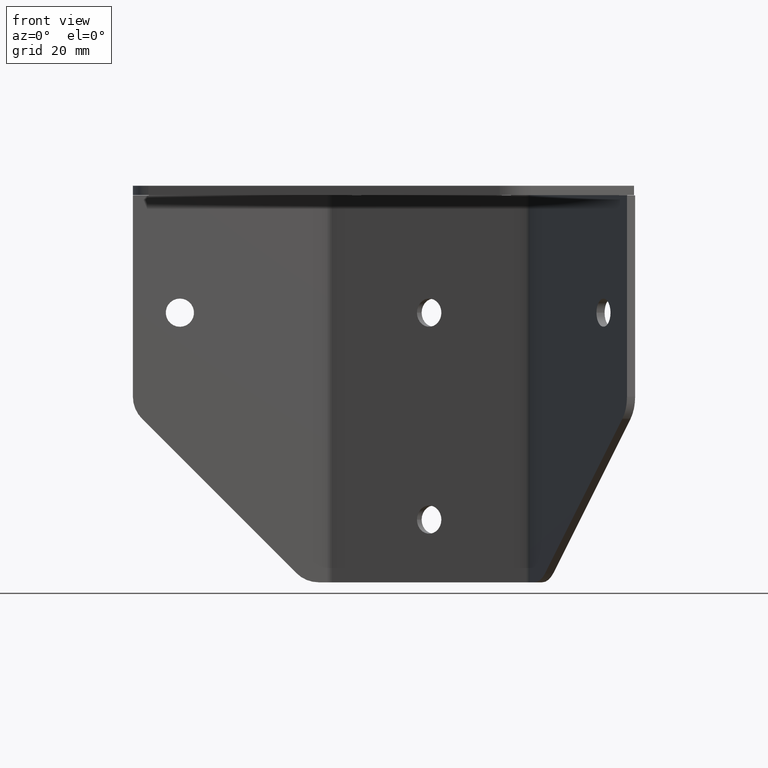
[diagram: clean part render]
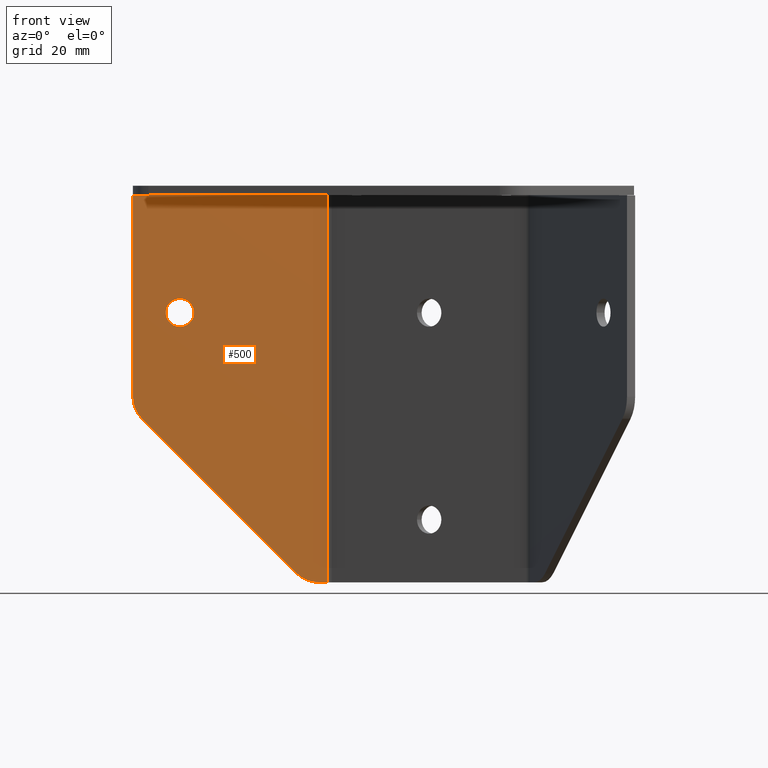
[diagram: same view with one face highlighted and labeled with its STEP entity id]
A machine part, front view. The second image highlights one B-rep face of the part: STEP entity #500.
In plain terms, the highlighted planar face has unit normal (0, -1, 0).
Its self-contained STEP definition (entity closure, byte-faithful):
#23 = CARTESIAN_POINT ( 'NONE',  ( 540.0000000000000000, 1091.305264068951146, 1220.000000000000000 ) ) ;
#34 = CARTESIAN_POINT ( 'NONE',  ( 552.5440536397413780, 1091.305264068951146, 1161.544053639740696 ) ) ;
#88 = ORIENTED_EDGE ( 'NONE', *, *, #930, .F. ) ;
#100 = CARTESIAN_POINT ( 'NONE',  ( 525.0000000000000000, 1091.305264068951146, 1133.999999999999545 ) ) ;
#103 = DIRECTION ( 'NONE',  ( 0.000000000000000000, 0.000000000000000000, 1.000000000000000000 ) ) ;
#115 = DIRECTION ( 'NONE',  ( 0.000000000000000000, 0.000000000000000000, -1.000000000000000000 ) ) ;
#133 = CARTESIAN_POINT ( 'NONE',  ( 525.0000000000000000, 1091.305264068951146, 1193.230242903213139 ) ) ;
#146 = EDGE_CURVE ( 'NONE', #716, #2875, #1432, .T. ) ;
#148 = CARTESIAN_POINT ( 'NONE',  ( 535.0000000000000000, 1091.305264068951146, 1193.230242903213139 ) ) ;
#189 = CIRCLE ( 'NONE', #2256, 10.00000000000000888 ) ;
#198 = CARTESIAN_POINT ( 'NONE',  ( 530.1000000000000227, 1091.305264068951146, 1260.499999999999545 ) ) ;
#263 = DIRECTION ( 'NONE',  ( -1.000000000000000000, 0.000000000000000000, 0.000000000000000000 ) ) ;
#278 = CARTESIAN_POINT ( 'NONE',  ( 586.9999884583739913, 1091.305264068951146, 1133.999999999999545 ) ) ;
#297 = CARTESIAN_POINT ( 'NONE',  ( 577.1591750913480610, 1091.305264068951146, 1136.928932188134013 ) ) ;
#401 = CARTESIAN_POINT ( 'NONE',  ( 540.0000000000000000, 1091.305264068951146, 1224.500000000000227 ) ) ;
#406 = EDGE_LOOP ( 'NONE', ( #1572, #419, #3000, #2856, #1799, #2610, #1806, #412, #88 ) ) ;
#412 = ORIENTED_EDGE ( 'NONE', *, *, #1875, .T. ) ;
#419 = ORIENTED_EDGE ( 'NONE', *, *, #2094, .T. ) ;
#476 = VERTEX_POINT ( 'NONE', #297 ) ;
#500 = ADVANCED_FACE ( 'NONE', ( #1187, #1255 ), #1028, .T. ) ;
#550 = VECTOR ( 'NONE', #584, 1000.000000000000000 ) ;
#553 = CARTESIAN_POINT ( 'NONE',  ( 525.0000000000000000, 1091.305264068951146, 1133.999999999999545 ) ) ;
#576 = EDGE_CURVE ( 'NONE', #1784, #2299, #1315, .T. ) ;
#584 = DIRECTION ( 'NONE',  ( -0.7071067811865469066, 0.000000000000000000, 0.7071067811865482389 ) ) ;
#625 = DIRECTION ( 'NONE',  ( 0.000000000000000000, 0.000000000000000000, -1.000000000000000000 ) ) ;
#661 = ORIENTED_EDGE ( 'NONE', *, *, #952, .F. ) ;
#716 = VERTEX_POINT ( 'NONE', #2270 ) ;
#736 = LINE ( 'NONE', #1928, #1549 ) ;
#753 = AXIS2_PLACEMENT_3D ( 'NONE', #148, #3014, #625 ) ;
#809 = CIRCLE ( 'NONE', #753, 10.00000000000000888 ) ;
#823 = DIRECTION ( 'NONE',  ( 0.000000000000000000, 0.000000000000000000, 1.000000000000000000 ) ) ;
#930 = EDGE_CURVE ( 'NONE', #1784, #2997, #2384, .T. ) ;
#952 = EDGE_CURVE ( 'NONE', #2875, #716, #2699, .T. ) ;
#986 = DIRECTION ( 'NONE',  ( 0.000000000000000000, 0.000000000000000000, -1.000000000000000000 ) ) ;
#1028 = PLANE ( 'NONE',  #2912 ) ;
#1044 = CARTESIAN_POINT ( 'NONE',  ( 530.1000000000000227, 1091.305264068951146, 1133.999999999999545 ) ) ;
#1105 = DIRECTION ( 'NONE',  ( 0.000000000000000000, 0.000000000000000000, -1.000000000000000000 ) ) ;
#1154 = CARTESIAN_POINT ( 'NONE',  ( 584.2302429032135933, 1091.305264068951146, 1143.999999999999545 ) ) ;
#1175 = CARTESIAN_POINT ( 'NONE',  ( 525.0000000000000000, 1091.305264068951146, 1260.499999999999545 ) ) ;
#1187 = FACE_BOUND ( 'NONE', #1969, .T. ) ;
#1255 = FACE_OUTER_BOUND ( 'NONE', #406, .T. ) ;
#1284 = CARTESIAN_POINT ( 'NONE',  ( 530.1000000000000227, 1091.305264068951146, 1257.399999999999636 ) ) ;
#1315 = LINE ( 'NONE', #1044, #2140 ) ;
#1356 = EDGE_CURVE ( 'NONE', #2352, #1519, #2729, .T. ) ;
#1373 = DIRECTION ( 'NONE',  ( 0.000000000000000000, -1.000000000000000000, 0.000000000000000000 ) ) ;
#1374 = VERTEX_POINT ( 'NONE', #278 ) ;
#1432 = CIRCLE ( 'NONE', #2239, 4.500000000000170530 ) ;
#1504 = DIRECTION ( 'NONE',  ( 0.000000000000000000, -0.000000000000000000, -1.000000000000000000 ) ) ;
#1512 = VERTEX_POINT ( 'NONE', #1979 ) ;
#1519 = VERTEX_POINT ( 'NONE', #2389 ) ;
#1549 = VECTOR ( 'NONE', #263, 1000.000000000000000 ) ;
#1569 = DIRECTION ( 'NONE',  ( 0.000000000000000000, -1.000000000000000000, 0.000000000000000000 ) ) ;
#1572 = ORIENTED_EDGE ( 'NONE', *, *, #576, .T. ) ;
#1629 = VERTEX_POINT ( 'NONE', #1662 ) ;
#1662 = CARTESIAN_POINT ( 'NONE',  ( 527.9289321881345813, 1091.305264068951146, 1186.159175091347606 ) ) ;
#1730 = DIRECTION ( 'NONE',  ( 1.000000000000000000, 0.000000000000000000, 0.000000000000000000 ) ) ;
#1784 = VERTEX_POINT ( 'NONE', #198 ) ;
#1799 = ORIENTED_EDGE ( 'NONE', *, *, #1859, .F. ) ;
#1806 = ORIENTED_EDGE ( 'NONE', *, *, #2737, .T. ) ;
#1859 = EDGE_CURVE ( 'NONE', #476, #1629, #2742, .T. ) ;
#1875 = EDGE_CURVE ( 'NONE', #1374, #2997, #1973, .T. ) ;
#1906 = ORIENTED_EDGE ( 'NONE', *, *, #146, .F. ) ;
#1928 = CARTESIAN_POINT ( 'NONE',  ( 525.0000000000000000, 1091.305264068951146, 1257.399999999999636 ) ) ;
#1969 = EDGE_LOOP ( 'NONE', ( #1906, #661 ) ) ;
#1973 = LINE ( 'NONE', #2221, #2809 ) ;
#1979 = CARTESIAN_POINT ( 'NONE',  ( 584.2302429032135933, 1091.305264068951146, 1133.999999999999545 ) ) ;
#2094 = EDGE_CURVE ( 'NONE', #2299, #1519, #736, .T. ) ;
#2140 = VECTOR ( 'NONE', #115, 1000.000000000000000 ) ;
#2221 = CARTESIAN_POINT ( 'NONE',  ( 586.9999884583739913, 1091.305264068951146, 1133.999999999999545 ) ) ;
#2238 = VECTOR ( 'NONE', #2662, 1000.000000000000000 ) ;
#2239 = AXIS2_PLACEMENT_3D ( 'NONE', #2272, #2535, #2305 ) ;
#2256 = AXIS2_PLACEMENT_3D ( 'NONE', #1154, #1373, #1105 ) ;
#2259 = LINE ( 'NONE', #100, #2866 ) ;
#2270 = CARTESIAN_POINT ( 'NONE',  ( 540.0000000000000000, 1091.305264068951146, 1215.499999999999773 ) ) ;
#2272 = CARTESIAN_POINT ( 'NONE',  ( 540.0000000000000000, 1091.305264068951146, 1220.000000000000000 ) ) ;
#2299 = VERTEX_POINT ( 'NONE', #1284 ) ;
#2305 = DIRECTION ( 'NONE',  ( 0.000000000000000000, 0.000000000000000000, -1.000000000000000000 ) ) ;
#2352 = VERTEX_POINT ( 'NONE', #133 ) ;
#2384 = LINE ( 'NONE', #1175, #2238 ) ;
#2389 = CARTESIAN_POINT ( 'NONE',  ( 525.0000000000000000, 1091.305264068951146, 1257.399999999999636 ) ) ;
#2390 = CARTESIAN_POINT ( 'NONE',  ( 586.9999884583739913, 1091.305264068951146, 1260.499999999999545 ) ) ;
#2439 = EDGE_CURVE ( 'NONE', #476, #1512, #189, .T. ) ;
#2535 = DIRECTION ( 'NONE',  ( 0.000000000000000000, -1.000000000000000000, 0.000000000000000000 ) ) ;
#2591 = AXIS2_PLACEMENT_3D ( 'NONE', #23, #2625, #986 ) ;
#2610 = ORIENTED_EDGE ( 'NONE', *, *, #2439, .T. ) ;
#2625 = DIRECTION ( 'NONE',  ( 0.000000000000000000, -1.000000000000000000, 0.000000000000000000 ) ) ;
#2662 = DIRECTION ( 'NONE',  ( 1.000000000000000000, 0.000000000000000000, 0.000000000000000000 ) ) ;
#2699 = CIRCLE ( 'NONE', #2591, 4.500000000000170530 ) ;
#2729 = LINE ( 'NONE', #2916, #2757 ) ;
#2737 = EDGE_CURVE ( 'NONE', #1512, #1374, #2259, .T. ) ;
#2742 = LINE ( 'NONE', #34, #550 ) ;
#2757 = VECTOR ( 'NONE', #823, 1000.000000000000000 ) ;
#2809 = VECTOR ( 'NONE', #103, 1000.000000000000000 ) ;
#2846 = EDGE_CURVE ( 'NONE', #2352, #1629, #809, .T. ) ;
#2856 = ORIENTED_EDGE ( 'NONE', *, *, #2846, .T. ) ;
#2866 = VECTOR ( 'NONE', #1730, 1000.000000000000000 ) ;
#2875 = VERTEX_POINT ( 'NONE', #401 ) ;
#2912 = AXIS2_PLACEMENT_3D ( 'NONE', #553, #1569, #1504 ) ;
#2916 = CARTESIAN_POINT ( 'NONE',  ( 525.0000000000000000, 1091.305264068951146, 1133.999999999999545 ) ) ;
#2997 = VERTEX_POINT ( 'NONE', #2390 ) ;
#3000 = ORIENTED_EDGE ( 'NONE', *, *, #1356, .F. ) ;
#3014 = DIRECTION ( 'NONE',  ( 0.000000000000000000, -1.000000000000000000, 0.000000000000000000 ) ) ;